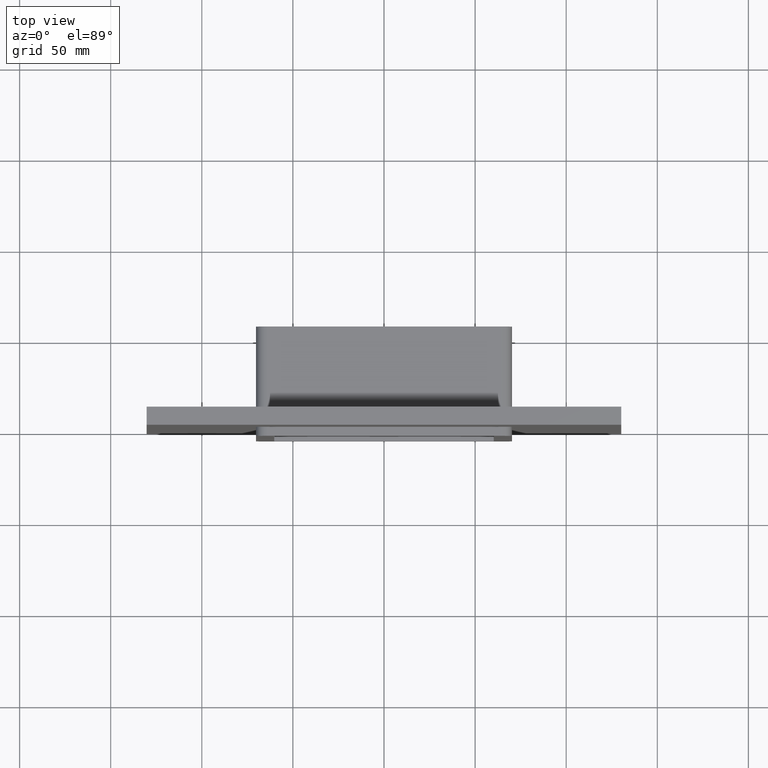
[diagram: clean part render]
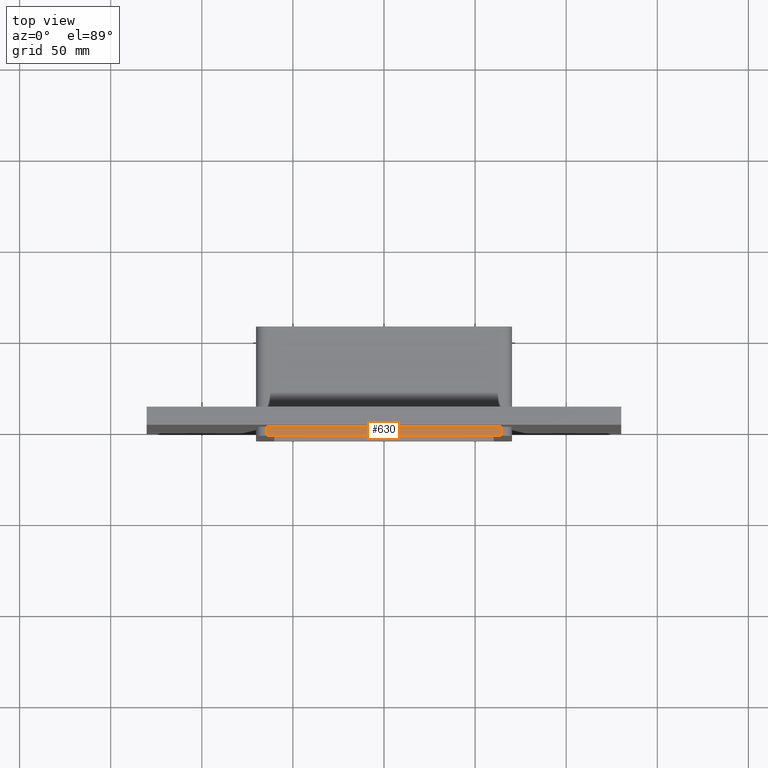
[diagram: same view with one face highlighted and labeled with its STEP entity id]
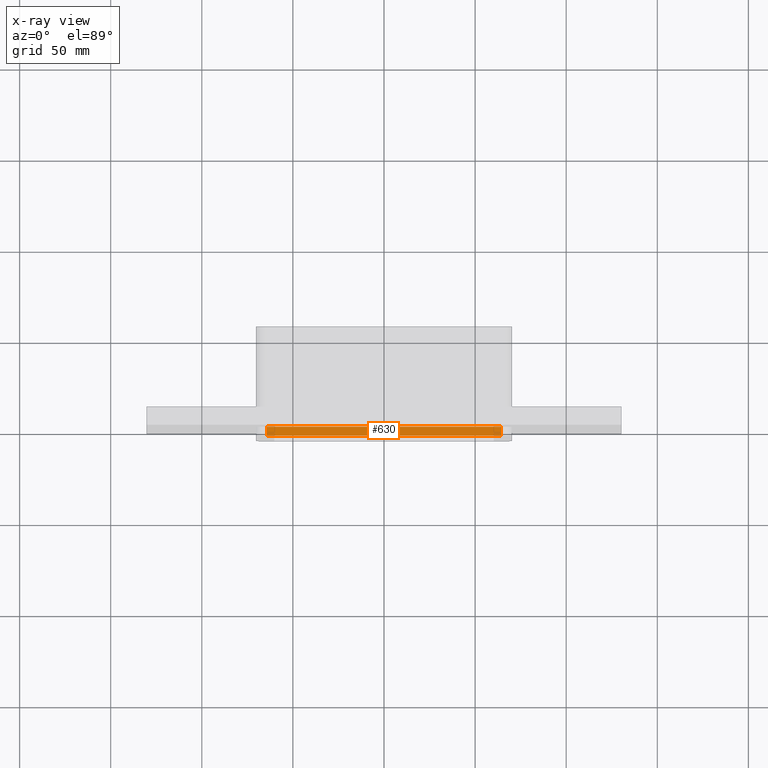
[diagram: x-ray of the same camera — body ghosted, the highlighted face saturated]
A machine part, top view. The second image highlights one B-rep face of the part: STEP entity #630.
The next image is the same camera in x-ray: the body ghosted, the highlighted face saturated — about 0% of this face is hidden behind the body in this view.
In plain terms, the highlighted planar face has unit normal (0, 0, 1).
Its self-contained STEP definition (entity closure, byte-faithful):
#219=CARTESIAN_POINT('',(64.25,0.0,89.750000000000014));
#220=VERTEX_POINT('',#219);
#270=CARTESIAN_POINT('',(-64.25,0.0,89.750000000000014));
#271=VERTEX_POINT('',#270);
#279=CARTESIAN_POINT('',(64.25,0.0,89.750000000000014));
#280=DIRECTION('',(-1.0,0.0,0.0));
#281=VECTOR('',#280,128.5);
#282=LINE('',#279,#281);
#283=EDGE_CURVE('',#220,#271,#282,.T.);
#539=CARTESIAN_POINT('',(-64.25,-5.0,89.750000000000014));
#540=VERTEX_POINT('',#539);
#548=CARTESIAN_POINT('',(-64.25,-5.0,89.750000000000014));
#549=DIRECTION('',(0.0,1.0,0.0));
#550=VECTOR('',#549,5.0);
#551=LINE('',#548,#550);
#552=EDGE_CURVE('',#540,#271,#551,.T.);
#607=CARTESIAN_POINT('',(-64.25,0.0,89.750000000000014));
#608=DIRECTION('',(0.0,0.0,1.0));
#609=DIRECTION('',(1.0,0.0,0.0));
#610=AXIS2_PLACEMENT_3D('',#607,#608,#609);
#611=PLANE('',#610);
#612=ORIENTED_EDGE('',*,*,#283,.T.);
#613=ORIENTED_EDGE('',*,*,#552,.F.);
#614=CARTESIAN_POINT('',(64.25,-5.0,89.750000000000014));
#615=VERTEX_POINT('',#614);
#616=CARTESIAN_POINT('',(64.25,-5.0,89.750000000000014));
#617=DIRECTION('',(-1.0,0.0,0.0));
#618=VECTOR('',#617,128.5);
#619=LINE('',#616,#618);
#620=EDGE_CURVE('',#615,#540,#619,.T.);
#621=ORIENTED_EDGE('',*,*,#620,.F.);
#622=CARTESIAN_POINT('',(64.25,-5.0,89.750000000000014));
#623=DIRECTION('',(0.0,1.0,0.0));
#624=VECTOR('',#623,5.0);
#625=LINE('',#622,#624);
#626=EDGE_CURVE('',#615,#220,#625,.T.);
#627=ORIENTED_EDGE('',*,*,#626,.T.);
#628=EDGE_LOOP('',(#612,#613,#621,#627));
#629=FACE_OUTER_BOUND('',#628,.T.);
#630=ADVANCED_FACE('',(#629),#611,.T.);